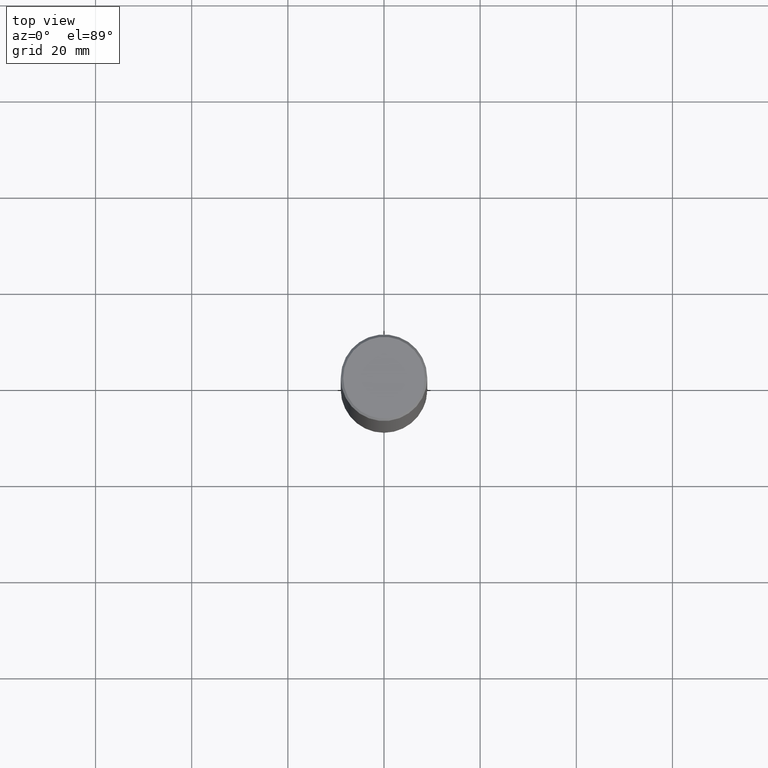
[diagram: clean part render]
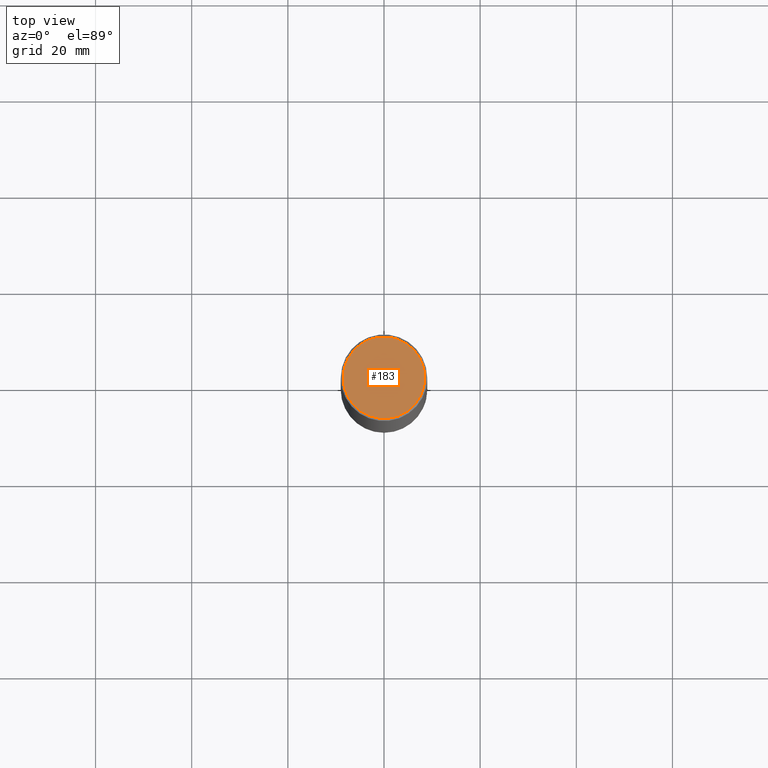
[diagram: same view with one face highlighted and labeled with its STEP entity id]
A machine part, top view. The second image highlights one B-rep face of the part: STEP entity #183.
In plain terms, the highlighted planar face has unit normal (0, -0, -1).
Its self-contained STEP definition (entity closure, byte-faithful):
#8 = VERTEX_POINT ( 'NONE', #106 ) ;
#34 = DIRECTION ( 'NONE',  ( 1.000000000000000000, -6.982962677686266711E-15, 4.880313359593399126E-29 ) ) ;
#36 = ORIENTED_EDGE ( 'NONE', *, *, #273, .T. ) ;
#38 = ORIENTED_EDGE ( 'NONE', *, *, #378, .T. ) ;
#46 = DIRECTION ( 'NONE',  ( 2.438088387897960049E-29, -3.491481338843145188E-15, -1.000000000000000000 ) ) ;
#55 = AXIS2_PLACEMENT_3D ( 'NONE', #245, #46, #108 ) ;
#65 = CARTESIAN_POINT ( 'NONE',  ( -5.636797637410186442E-45, 8.047853120054415592E-31, 2.304996744654222029E-16 ) ) ;
#77 = AXIS2_PLACEMENT_3D ( 'NONE', #65, #225, #34 ) ;
#83 = DIRECTION ( 'NONE',  ( 1.000000000000000000, -6.982962677686266711E-15, 4.880313359593399126E-29 ) ) ;
#106 = CARTESIAN_POINT ( 'NONE',  ( 0.3343499999999997585, -2.397327298921057526E-15, 2.304996744654387690E-16 ) ) ;
#108 = DIRECTION ( 'NONE',  ( -1.000000000000000000, 6.982962677686265922E-15, -4.876176775795935793E-29 ) ) ;
#116 = DIRECTION ( 'NONE',  ( -2.445468806185136597E-29, 3.491481338843145583E-15, 1.000000000000000000 ) ) ;
#132 = VERTEX_POINT ( 'NONE', #222 ) ;
#175 = CIRCLE ( 'NONE', #374, 0.3343499999999997585 ) ;
#183 = ADVANCED_FACE ( 'NONE', ( #392 ), #280, .F. ) ;
#222 = CARTESIAN_POINT ( 'NONE',  ( -0.3343499999999997585, 2.369668384672834141E-15, 2.304996744654057847E-16 ) ) ;
#225 = DIRECTION ( 'NONE',  ( -2.445468806185136597E-29, 3.491481338843145583E-15, 1.000000000000000000 ) ) ;
#245 = CARTESIAN_POINT ( 'NONE',  ( 2.334753571284400914E-15, 0.3343499999999997585, -1.052126948409493867E-15 ) ) ;
#270 = CIRCLE ( 'NONE', #77, 0.3343499999999997585 ) ;
#273 = EDGE_CURVE ( 'NONE', #132, #8, #175, .T. ) ;
#280 = PLANE ( 'NONE',  #55 ) ;
#286 = CARTESIAN_POINT ( 'NONE',  ( -5.636797637410186442E-45, 8.047853120054415592E-31, 2.304996744654222029E-16 ) ) ;
#374 = AXIS2_PLACEMENT_3D ( 'NONE', #286, #116, #83 ) ;
#378 = EDGE_CURVE ( 'NONE', #8, #132, #270, .T. ) ;
#386 = EDGE_LOOP ( 'NONE', ( #36, #38 ) ) ;
#392 = FACE_OUTER_BOUND ( 'NONE', #386, .T. ) ;